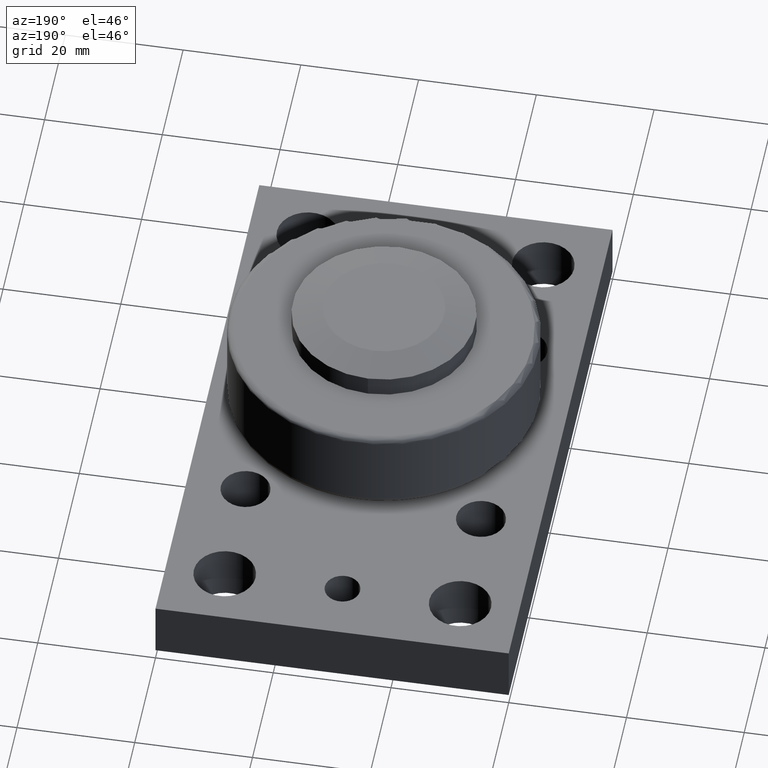
[diagram: clean part render]
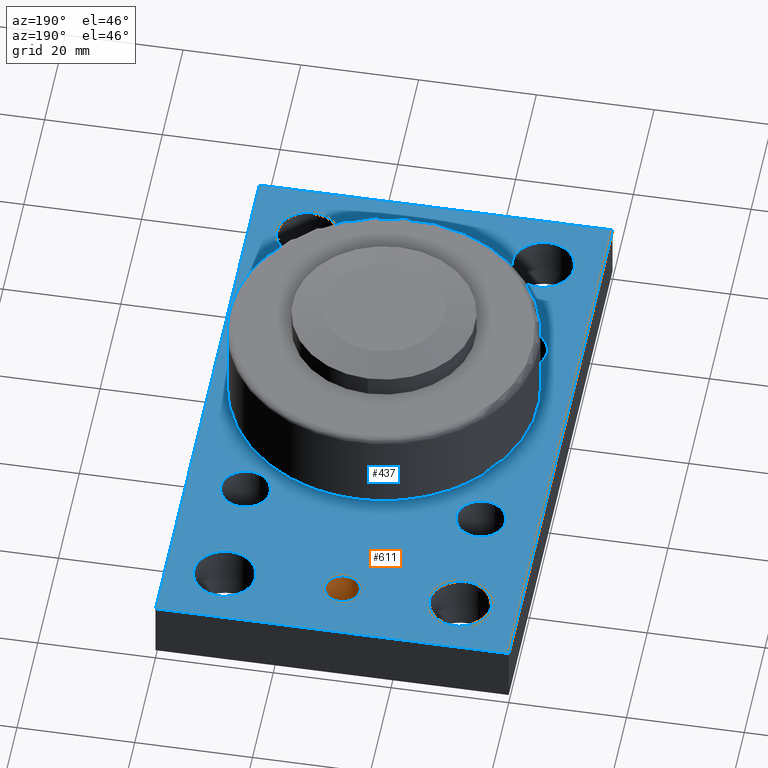
[diagram: same view with the hole feature highlighted: cylindrical wall and planar end face, labeled with their STEP entity ids]
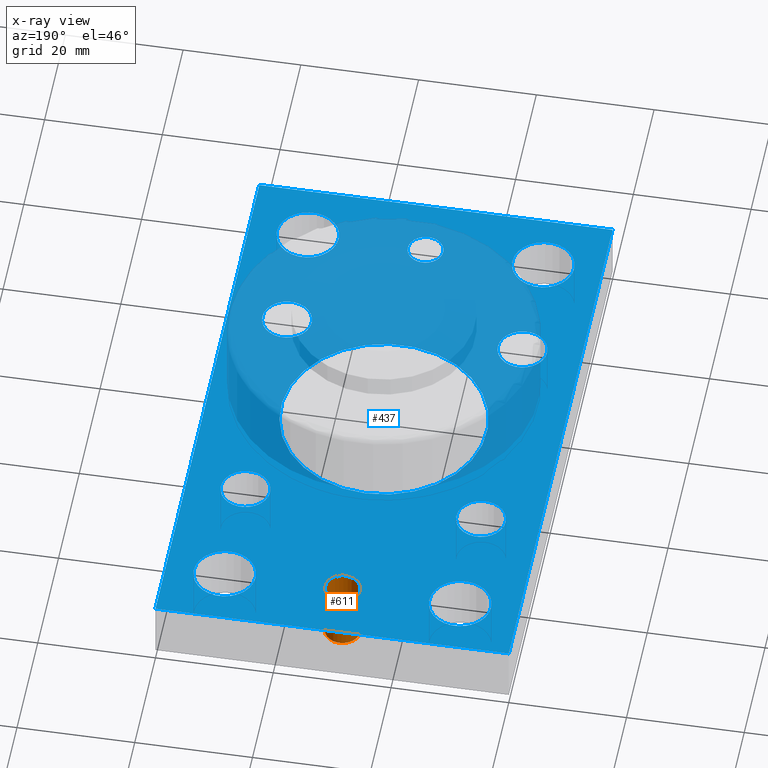
[diagram: x-ray of the same camera — body ghosted, the hole faces saturated]
A machine part, auxiliary view. The highlighted faces form one hole feature of diameter 6 mm: the cylindrical wall (entity #611, orange) and its adjacent planar end face (entity #437, blue) — they share a circular edge in the B-rep.
The next image is the same camera in x-ray (body ghosted, the hole faces saturated) — the bore reads through the body.
Wall:
#335=CARTESIAN_POINT('',(32.999999999999986,90.0,10.0));
#336=VERTEX_POINT('',#335);
#337=CARTESIAN_POINT('',(29.999999999999993,90.0,10.0));
#338=DIRECTION('',(0.0,0.0,-1.0));
#339=DIRECTION('',(1.0,0.0,0.0));
#340=AXIS2_PLACEMENT_3D('',#337,#338,#339);
#341=CIRCLE('',#340,3.0);
#342=EDGE_CURVE('',#336,#336,#341,.T.);
#565=CARTESIAN_POINT('',(26.999999999999993,90.0,0.0));
#566=VERTEX_POINT('',#565);
#567=CARTESIAN_POINT('',(29.999999999999993,90.0,0.0));
#568=DIRECTION('',(0.0,0.0,1.0));
#569=DIRECTION('',(1.0,0.0,0.0));
#570=AXIS2_PLACEMENT_3D('',#567,#568,#569);
#571=CIRCLE('',#570,3.0);
#572=EDGE_CURVE('',#566,#566,#571,.T.);
#600=CARTESIAN_POINT('',(29.999999999999993,90.0,-107.04699910719626));
#601=DIRECTION('',(0.0,0.0,1.0));
#602=DIRECTION('',(1.0,0.0,0.0));
#603=AXIS2_PLACEMENT_3D('',#600,#601,#602);
#604=CYLINDRICAL_SURFACE('',#603,3.0);
#605=ORIENTED_EDGE('',*,*,#572,.F.);
#606=EDGE_LOOP('',(#605));
#607=FACE_OUTER_BOUND('',#606,.T.);
#608=ORIENTED_EDGE('',*,*,#342,.F.);
#609=EDGE_LOOP('',(#608));
#610=FACE_BOUND('',#609,.T.);
#611=ADVANCED_FACE('',(#607,#610),#604,.F.);
End face:
#241=CARTESIAN_POINT('',(29.999999999999993,67.5,9.999999999999996));
#242=VERTEX_POINT('',#241);
#243=CARTESIAN_POINT('',(29.999999999999993,50.0,10.0));
#244=DIRECTION('',(0.0,0.0,-1.0));
#245=DIRECTION('',(0.0,1.0,0.0));
#246=AXIS2_PLACEMENT_3D('',#243,#244,#245);
#247=CIRCLE('',#246,17.5);
#248=EDGE_CURVE('',#242,#242,#247,.T.);
#285=CARTESIAN_POINT('',(29.999999999999993,50.0,10.0));
#286=DIRECTION('',(0.0,0.0,1.0));
#287=DIRECTION('',(1.0,0.0,0.0));
#288=AXIS2_PLACEMENT_3D('',#285,#286,#287);
#289=PLANE('',#288);
#290=CARTESIAN_POINT('',(0.0,0.0,10.0));
#291=VERTEX_POINT('',#290);
#292=CARTESIAN_POINT('',(-2.723482E-014,100.0,10.0));
#293=VERTEX_POINT('',#292);
#294=CARTESIAN_POINT('',(0.0,0.0,10.0));
#295=DIRECTION('',(0.0,1.0,0.0));
#296=VECTOR('',#295,100.0);
#297=LINE('',#294,#296);
#298=EDGE_CURVE('',#291,#293,#297,.T.);
#299=ORIENTED_EDGE('',*,*,#298,.F.);
#300=CARTESIAN_POINT('',(60.0,1.034896E-030,10.0));
#301=VERTEX_POINT('',#300);
#302=CARTESIAN_POINT('',(60.0,1.034896E-030,10.0));
#303=DIRECTION('',(-1.0,0.0,0.0));
#304=VECTOR('',#303,60.0);
#305=LINE('',#302,#304);
#306=EDGE_CURVE('',#301,#291,#305,.T.);
#307=ORIENTED_EDGE('',*,*,#306,.F.);
#308=CARTESIAN_POINT('',(59.999999999999986,100.0,10.0));
#309=VERTEX_POINT('',#308);
#310=CARTESIAN_POINT('',(59.999999999999986,100.0,10.0));
#311=DIRECTION('',(0.0,-1.0,0.0));
#312=VECTOR('',#311,100.0);
#313=LINE('',#310,#312);
#314=EDGE_CURVE('',#309,#301,#313,.T.);
#315=ORIENTED_EDGE('',*,*,#314,.F.);
#316=CARTESIAN_POINT('',(-2.723482E-014,100.0,10.0));
#317=DIRECTION('',(1.0,0.0,0.0));
#318=VECTOR('',#317,60.000000000000007);
#319=LINE('',#316,#318);
#320=EDGE_CURVE('',#293,#309,#319,.T.);
#321=ORIENTED_EDGE('',*,*,#320,.F.);
#322=EDGE_LOOP('',(#299,#307,#315,#321));
#323=FACE_OUTER_BOUND('',#322,.T.);
#324=CARTESIAN_POINT('',(33.000000000000014,10.0,10.0));
#325=VERTEX_POINT('',#324);
#326=CARTESIAN_POINT('',(30.000000000000014,10.0,10.0));
#327=DIRECTION('',(0.0,0.0,-1.0));
#328=DIRECTION('',(1.0,0.0,0.0));
#329=AXIS2_PLACEMENT_3D('',#326,#327,#328);
#330=CIRCLE('',#329,3.0);
#331=EDGE_CURVE('',#325,#325,#330,.T.);
#332=ORIENTED_EDGE('',*,*,#331,.T.);
#333=EDGE_LOOP('',(#332));
#334=FACE_BOUND('',#333,.T.);
#335=CARTESIAN_POINT('',(32.999999999999986,90.0,10.0));
#336=VERTEX_POINT('',#335);
#337=CARTESIAN_POINT('',(29.999999999999993,90.0,10.0));
#338=DIRECTION('',(0.0,0.0,-1.0));
#339=DIRECTION('',(1.0,0.0,0.0));
#340=AXIS2_PLACEMENT_3D('',#337,#338,#339);
#341=CIRCLE('',#340,3.0);
#342=EDGE_CURVE('',#336,#336,#341,.T.);
#343=ORIENTED_EDGE('',*,*,#342,.T.);
#344=EDGE_LOOP('',(#343));
#345=FACE_BOUND('',#344,.T.);
#346=CARTESIAN_POINT('',(55.25,10.000000000000009,10.0));
#347=VERTEX_POINT('',#346);
#348=CARTESIAN_POINT('',(50.0,10.000000000000009,10.0));
#349=DIRECTION('',(0.0,0.0,-1.0));
#350=DIRECTION('',(1.0,0.0,0.0));
#351=AXIS2_PLACEMENT_3D('',#348,#349,#350);
#352=CIRCLE('',#351,5.25);
#353=EDGE_CURVE('',#347,#347,#352,.T.);
#354=ORIENTED_EDGE('',*,*,#353,.T.);
#355=EDGE_LOOP('',(#354));
#356=FACE_BOUND('',#355,.T.);
#357=CARTESIAN_POINT('',(15.250000000000002,10.0,10.0));
#358=VERTEX_POINT('',#357);
#359=CARTESIAN_POINT('',(10.0,10.0,10.0));
#360=DIRECTION('',(0.0,0.0,-1.0));
#361=DIRECTION('',(1.0,0.0,0.0));
#362=AXIS2_PLACEMENT_3D('',#359,#360,#361);
#363=CIRCLE('',#362,5.25);
#364=EDGE_CURVE('',#358,#358,#363,.T.);
#365=ORIENTED_EDGE('',*,*,#364,.T.);
#366=EDGE_LOOP('',(#365));
#367=FACE_BOUND('',#366,.T.);
#368=CARTESIAN_POINT('',(15.249999999999989,90.0,10.0));
#369=VERTEX_POINT('',#368);
#370=CARTESIAN_POINT('',(9.999999999999989,90.0,10.0));
#371=DIRECTION('',(0.0,0.0,-1.0));
#372=DIRECTION('',(1.0,0.0,0.0));
#373=AXIS2_PLACEMENT_3D('',#370,#371,#372);
#374=CIRCLE('',#373,5.25);
#375=EDGE_CURVE('',#369,#369,#374,.T.);
#376=ORIENTED_EDGE('',*,*,#375,.T.);
#377=EDGE_LOOP('',(#376));
#378=FACE_BOUND('',#377,.T.);
#379=CARTESIAN_POINT('',(55.249999999999986,90.000000000000028,10.0));
#380=VERTEX_POINT('',#379);
#381=CARTESIAN_POINT('',(49.999999999999972,90.000000000000028,10.0));
#382=DIRECTION('',(0.0,0.0,-1.0));
#383=DIRECTION('',(1.0,0.0,0.0));
#384=AXIS2_PLACEMENT_3D('',#381,#382,#383);
#385=CIRCLE('',#384,5.25);
#386=EDGE_CURVE('',#380,#380,#385,.T.);
#387=ORIENTED_EDGE('',*,*,#386,.T.);
#388=EDGE_LOOP('',(#387));
#389=FACE_BOUND('',#388,.T.);
#390=CARTESIAN_POINT('',(14.188000000000001,29.999999999999964,10.0));
#391=VERTEX_POINT('',#390);
#392=CARTESIAN_POINT('',(10.0,29.999999999999964,10.0));
#393=DIRECTION('',(0.0,0.0,-1.0));
#394=DIRECTION('',(1.0,0.0,0.0));
#395=AXIS2_PLACEMENT_3D('',#392,#393,#394);
#396=CIRCLE('',#395,4.188);
#397=EDGE_CURVE('',#391,#391,#396,.T.);
#398=ORIENTED_EDGE('',*,*,#397,.T.);
#399=EDGE_LOOP('',(#398));
#400=FACE_BOUND('',#399,.T.);
#401=CARTESIAN_POINT('',(14.187999999999981,70.0,10.0));
#402=VERTEX_POINT('',#401);
#403=CARTESIAN_POINT('',(9.999999999999981,70.0,10.0));
#404=DIRECTION('',(0.0,0.0,-1.0));
#405=DIRECTION('',(1.0,0.0,0.0));
#406=AXIS2_PLACEMENT_3D('',#403,#404,#405);
#407=CIRCLE('',#406,4.188);
#408=EDGE_CURVE('',#402,#402,#407,.T.);
#409=ORIENTED_EDGE('',*,*,#408,.T.);
#410=EDGE_LOOP('',(#409));
#411=FACE_BOUND('',#410,.T.);
#412=CARTESIAN_POINT('',(54.188000000000009,70.000000000000028,10.0));
#413=VERTEX_POINT('',#412);
#414=CARTESIAN_POINT('',(50.0,70.000000000000028,10.0));
#415=DIRECTION('',(0.0,0.0,-1.0));
#416=DIRECTION('',(1.0,0.0,0.0));
#417=AXIS2_PLACEMENT_3D('',#414,#415,#416);
#418=CIRCLE('',#417,4.188);
#419=EDGE_CURVE('',#413,#413,#418,.T.);
#420=ORIENTED_EDGE('',*,*,#419,.T.);
#421=EDGE_LOOP('',(#420));
#422=FACE_BOUND('',#421,.T.);
#423=CARTESIAN_POINT('',(54.188000000000009,29.999999999999993,10.0));
#424=VERTEX_POINT('',#423);
#425=CARTESIAN_POINT('',(50.000000000000014,29.999999999999993,10.0));
#426=DIRECTION('',(0.0,0.0,-1.0));
#427=DIRECTION('',(1.0,0.0,0.0));
#428=AXIS2_PLACEMENT_3D('',#425,#426,#427);
#429=CIRCLE('',#428,4.188);
#430=EDGE_CURVE('',#424,#424,#429,.T.);
#431=ORIENTED_EDGE('',*,*,#430,.T.);
#432=EDGE_LOOP('',(#431));
#433=FACE_BOUND('',#432,.T.);
#434=ORIENTED_EDGE('',*,*,#248,.T.);
#435=EDGE_LOOP('',(#434));
#436=FACE_BOUND('',#435,.T.);
#437=ADVANCED_FACE('',(#323,#334,#345,#356,#367,#378,#389,#400,#411,#422,#433,#436),#289,.T.);